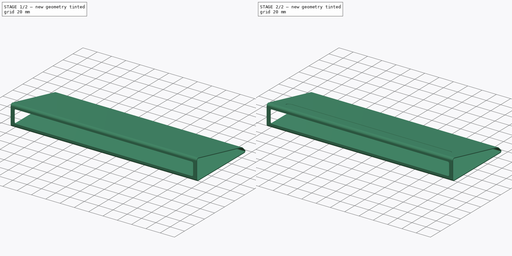
[diagram: build sequence overview — one tinted view per stage of 2, left to right]
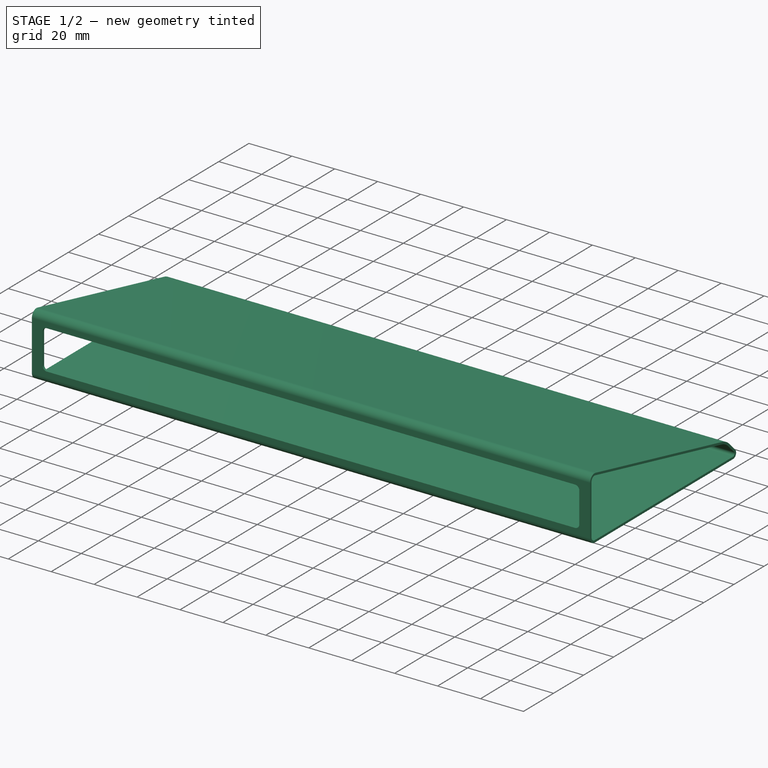
[diagram: stage 1 of 2 — iso view after this stage's code; geometry added in this stage tinted green]
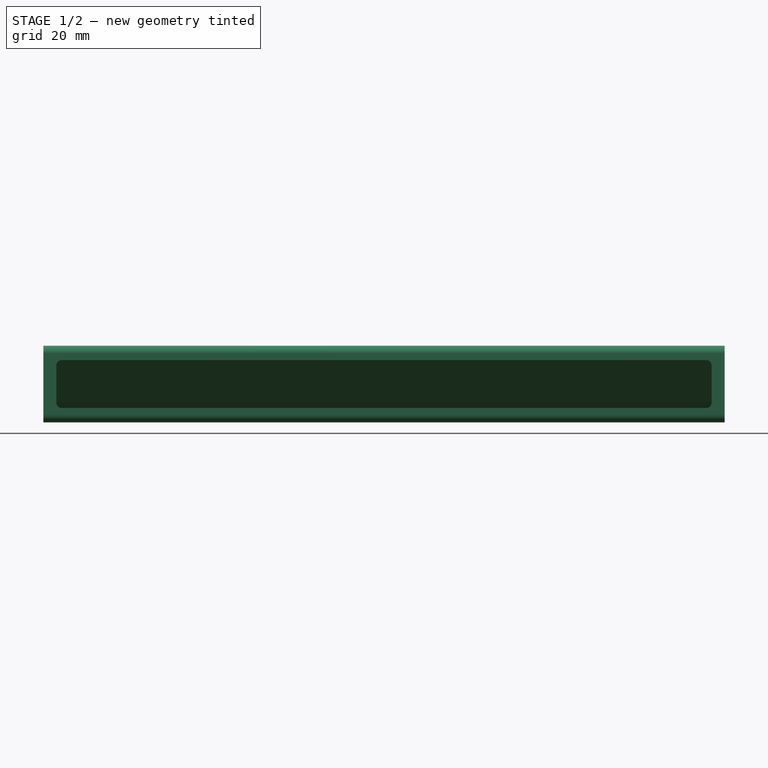
[diagram: stage 1 of 2 — front view after this stage's code; geometry added in this stage tinted green]
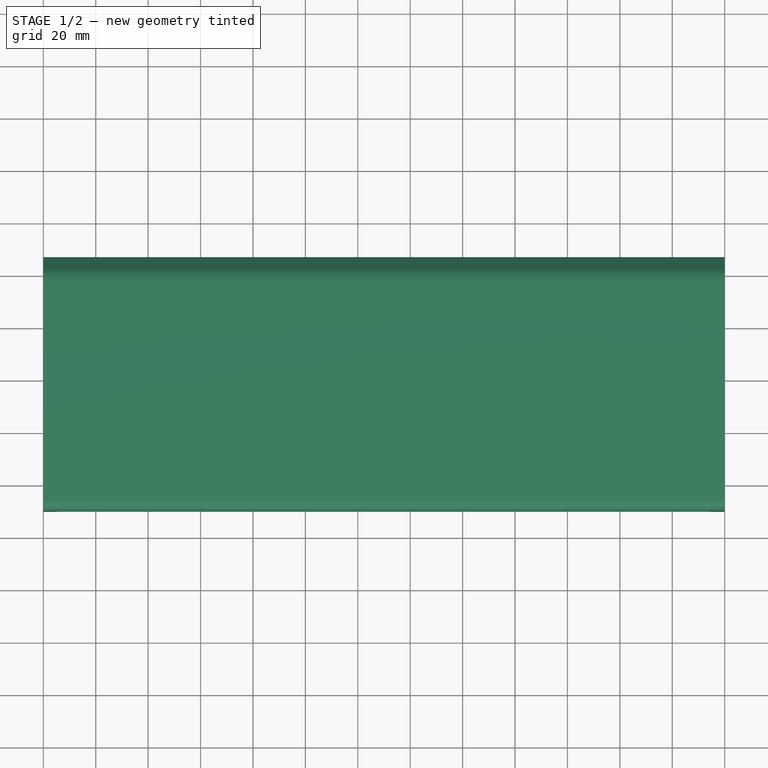
[diagram: stage 1 of 2 — top view after this stage's code; geometry added in this stage tinted green]
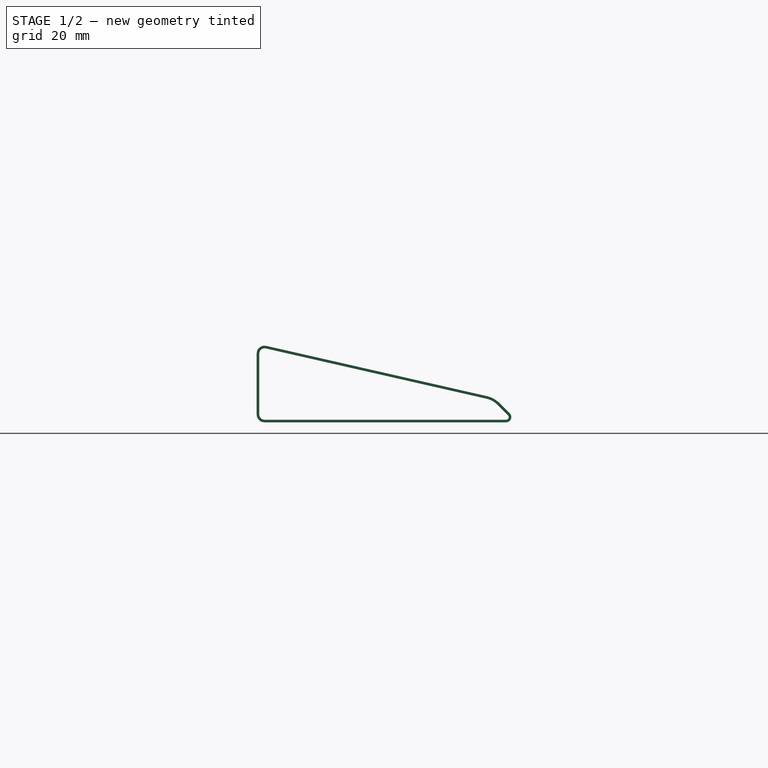
[diagram: stage 1 of 2 — right view after this stage's code; geometry added in this stage tinted green]
FCSTD DOCUMENT  (FreeCAD 0.19R24366 (Git))
Label: Laptop_base
License: All rights reserved
LicenseURL: http://en.wikipedia.org/wiki/All_rights_reserved
objects: Sketcher::SketchObject×4, PartDesign::Pocket×3, PartDesign::Pad×1, PartDesign::Body×1
note: 13 computed .brp shape members not serialized (recipe doc carries the construction recipe); baked Part::Feature solids carry a one-line shape summary decoded from their .brp

FEATURE [Sketcher::SketchObject] Sketch
  FullyConstrained = true
  MapMode = 5
  Placement = pos=(0,0,0) rot=(0.57735,0.57735,0.57735;2.0944rad)
  Support = -> [YZ_Plane]
  sketch-geometry (19):
    g0: LineSegment StartX=-47 StartY=0 StartZ=0 EndX=45.1716 EndY=0 EndZ=0
    g1: LineSegment StartX=46.5858 StartY=3.41421 StartZ=0 EndX=42.6793 EndY=7.32067 EndZ=0
    g2: LineSegment StartX=37.8286 StartY=10 StartZ=0 EndX=-46.3339 EndY=29.1652 EndZ=0
    g3: LineSegment StartX=-50 StartY=3 StartZ=0 EndX=-50 EndY=26.2401 EndZ=0
    g4: ArcOfCircle CenterX=-47 CenterY=3 CenterZ=0 NormalX=0 NormalY=0 NormalZ=1 AngleXU=0 Radius=3 StartAngle=3.14159 EndAngle=4.71239
    g5: GeomPoint X=-50 Y=0 Z=0
    g6: ArcOfCircle CenterX=45.1716 CenterY=2 CenterZ=0 NormalX=0 NormalY=0 NormalZ=1 AngleXU=0 Radius=2 StartAngle=4.71239 EndAngle=7.06858
    g7: GeomPoint X=50 Y=0 Z=0
    g8: ArcOfCircle CenterX=35.6083 CenterY=0.249607 CenterZ=0 NormalX=0 NormalY=0 NormalZ=1 AngleXU=0 Radius=10 StartAngle=0.785398 EndAngle=1.3469
    g9: ArcOfCircle CenterX=-47 CenterY=26.2401 CenterZ=0 NormalX=0 NormalY=0 NormalZ=1 AngleXU=0 Radius=3 StartAngle=1.3469 EndAngle=3.14159
    g10: GeomPoint X=-50 Y=30 Z=0
    g11: LineSegment StartX=-49 StartY=3 StartZ=0 EndX=-49 EndY=26.2401 EndZ=0
    g12: LineSegment StartX=-46.5559 StartY=28.1901 StartZ=0 EndX=37.6065 EndY=9.02496 EndZ=0
    g13: LineSegment StartX=41.9722 StartY=6.61357 StartZ=0 EndX=45.8787 EndY=2.70711 EndZ=0
    g14: LineSegment StartX=45.1716 StartY=1 StartZ=0 EndX=-47 EndY=1 EndZ=0
    g15: ArcOfCircle CenterX=35.6083 CenterY=0.249607 CenterZ=0 NormalX=0 NormalY=0 NormalZ=1 AngleXU=0 Radius=9 StartAngle=0.785398 EndAngle=1.3469
    g16: ArcOfCircle CenterX=45.1716 CenterY=2 CenterZ=0 NormalX=0 NormalY=0 NormalZ=1 AngleXU=0 Radius=1 StartAngle=4.71239 EndAngle=7.06858
    g17: ArcOfCircle CenterX=-47 CenterY=3 CenterZ=0 NormalX=0 NormalY=0 NormalZ=1 AngleXU=0 Radius=2 StartAngle=3.14159 EndAngle=4.71239
    g18: ArcOfCircle CenterX=-47 CenterY=26.2401 CenterZ=0 NormalX=0 NormalY=0 NormalZ=1 AngleXU=0 Radius=2 StartAngle=1.3469 EndAngle=3.14159
  constraints (41):
    c: Vertical(g3)
    c: PointOnObject(g5,g-1)
    c: Symmetric(g5,g7,g-2)
    c: DistanceX(g5,g7) = 100  'depth'
    c: DistanceY(g5,g10) = 30  'height'
    c: PointOnObject(g5,g0)
    c: PointOnObject(g5,g3)
    c: Tangent(g0,g4) = -1.5708
    c: Tangent(g3,g4) = 1.5708
    c: PointOnObject(g7,g0)
    c: PointOnObject(g7,g1)
    c: Tangent(g0,g6) = -1.5708
    c: Tangent(g1,g6) = -1.5708
    c: Tangent(g1,g8) = -1.5708
    c: Tangent(g2,g8) = -1.5708
    c: PointOnObject(g10,g3)
    c: PointOnObject(g10,g2)
    c: Tangent(g3,g9) = 1.5708
    c: Tangent(g2,g9) = -1.5708
    c: Distance(g2,g0) = 10
    c: Radius(g6) = 2
    c: Radius(g4) = 3
    c: Radius(g9) = 3
    c: Angle(g1,g0) = 0.785398
    c: Radius(g8) = 10  'fillet-slopeDown'
    c: Vertical(g11)
    c: Horizontal(g14)
    c: Parallel(g12,g2)
    c: Tangent(g12,g15) = 1.5708
    c: Tangent(g13,g15) = 1.5708
    c: Tangent(g13,g16) = 1.5708
    c: Tangent(g14,g16) = 1.5708
    c: Tangent(g14,g17) = 1.5708
    c: Tangent(g11,g17) = 1.5708
    c: Tangent(g11,g18) = 1.5708
    c: Tangent(g12,g18) = 1.5708
    c: Radius(g16) = 1
    c: Coincident(g17,g4)
    c: Coincident(g18,g9)
    c: Coincident(g15,g8)
    c: Coincident(g16,g6)
FEATURE [PartDesign::Pad] Pad
  Direction = (1,1,1)
  Length = 260
  Length2 = 100
  Placement = pos=(0,0,0) rot=(0.57735,0.57735,0.57735;2.0944rad)
  Profile = -> Sketch
  Refine = true
  Type = 0
FEATURE [Sketcher::SketchObject] Sketch001
  ExternalGeometry = -> [Sketch]
  FullyConstrained = true
  MapMode = 5
  Placement = pos=(-2.2e-14,-50,1.1e-14) rot=(-0.57735,-0.57735,0.57735;4.18879rad)
  Support = -> [Pad]
  sketch-geometry (14):
    g0: LineSegment StartX=-3 StartY=1.08e-14 StartZ=0 EndX=-3 EndY=100 EndZ=0
    g1: LineSegment StartX=-26.2401 StartY=9.5e-15 StartZ=0 EndX=-26.2401 EndY=100 EndZ=0
    g2: LineSegment StartX=-21.7401 StartY=5 StartZ=0 EndX=-7.5 EndY=5 EndZ=0
    g3: LineSegment StartX=-5.5 StartY=7 StartZ=0 EndX=-5.5 EndY=253 EndZ=0
    g4: LineSegment StartX=-7.5 StartY=255 StartZ=0 EndX=-21.7401 EndY=255 EndZ=0
    g5: LineSegment StartX=-23.7401 StartY=253 StartZ=0 EndX=-23.7401 EndY=7 EndZ=0
    g6: ArcOfCircle CenterX=-7.5 CenterY=7 CenterZ=0 NormalX=0 NormalY=0 NormalZ=1 AngleXU=0 Radius=2 StartAngle=4.71239 EndAngle=6.28319
    g7: GeomPoint X=-5.5 Y=5 Z=0
    g8: ArcOfCircle CenterX=-21.7401 CenterY=7 CenterZ=0 NormalX=0 NormalY=0 NormalZ=1 AngleXU=0 Radius=2 StartAngle=3.14159 EndAngle=4.71239
    g9: GeomPoint X=-23.7401 Y=5 Z=0
    g10: ArcOfCircle CenterX=-21.7401 CenterY=253 CenterZ=0 NormalX=0 NormalY=0 NormalZ=1 AngleXU=0 Radius=2 StartAngle=1.5708 EndAngle=3.14159
    g11: GeomPoint X=-23.7401 Y=255 Z=0
    g12: ArcOfCircle CenterX=-7.5 CenterY=253 CenterZ=0 NormalX=0 NormalY=0 NormalZ=1 AngleXU=0 Radius=2 StartAngle=-1.8e-15 EndAngle=1.5708
    g13: GeomPoint X=-5.5 Y=255 Z=0
  constraints (34):
    c: Coincident(g0,g-3)
    c: Vertical(g0)
    c: Coincident(g1,g-3)
    c: Vertical(g1)
    c: Horizontal(g2)
    c: Horizontal(g4)
    c: Vertical(g3)
    c: Vertical(g5)
    c: Distance(g13,g7) = 250
    c: Distance(g9,g1) = 2.5
    c: Distance(g7,g0) = 2.5
    c: Distance(g7,g-3) = 5
    c: Distance(g1) = 100
    c: Equal(g0,g1)
    c: PointOnObject(g7,g3)
    c: PointOnObject(g7,g2)
    c: Tangent(g3,g6) = -1.5708
    c: Tangent(g2,g6) = -1.5708
    c: PointOnObject(g9,g2)
    c: PointOnObject(g9,g5)
    c: Tangent(g2,g8) = -1.5708
    c: Tangent(g5,g8) = -1.5708
    c: PointOnObject(g11,g5)
    c: PointOnObject(g11,g4)
    c: Tangent(g5,g10) = -1.5708
    c: Tangent(g4,g10) = -1.5708
    c: PointOnObject(g13,g4)
    c: PointOnObject(g13,g3)
    c: Tangent(g4,g12) = -1.5708
    c: Tangent(g3,g12) = -1.5708
    c: Radius(g12) = 2
    c: Equal(g12,g10)
    c: Equal(g10,g6)
    c: Equal(g6,g8)
FEATURE [PartDesign::Pocket] Pocket
  BaseFeature = -> Pad
  Length = 5
  Length2 = 100
  Placement = pos=(0,0,0) rot=(0.57735,0.57735,0.57735;2.0944rad)
  Profile = -> Sketch001
  Refine = true
  Type = 0
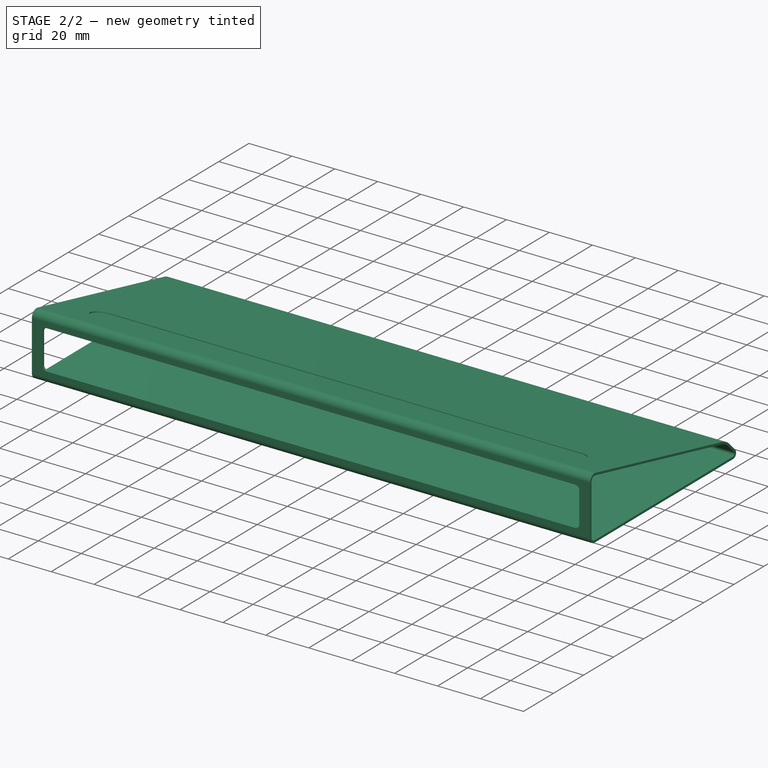
[diagram: stage 2 of 2 — iso view after this stage's code; geometry added in this stage tinted green]
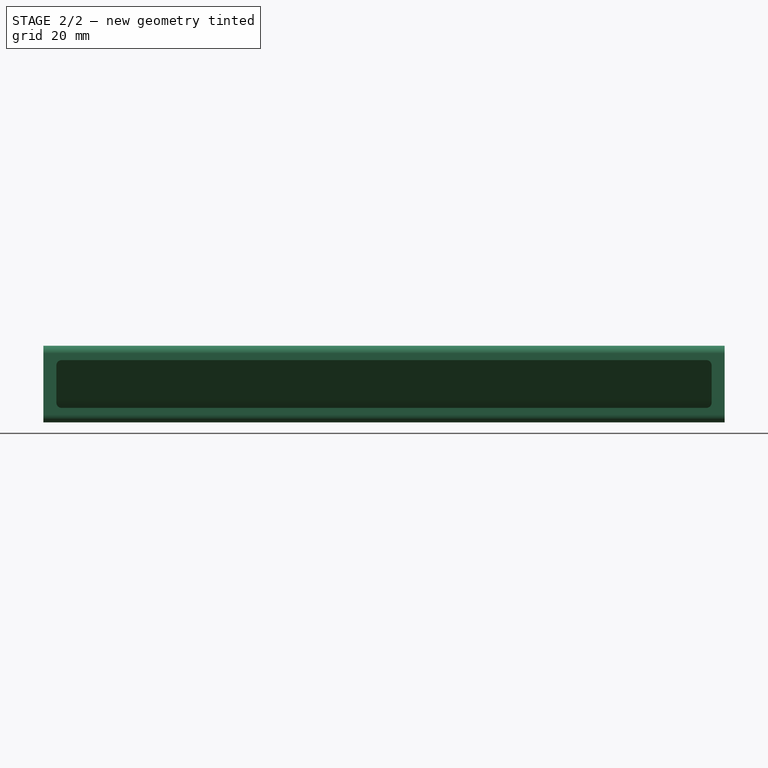
[diagram: stage 2 of 2 — front view after this stage's code; geometry added in this stage tinted green]
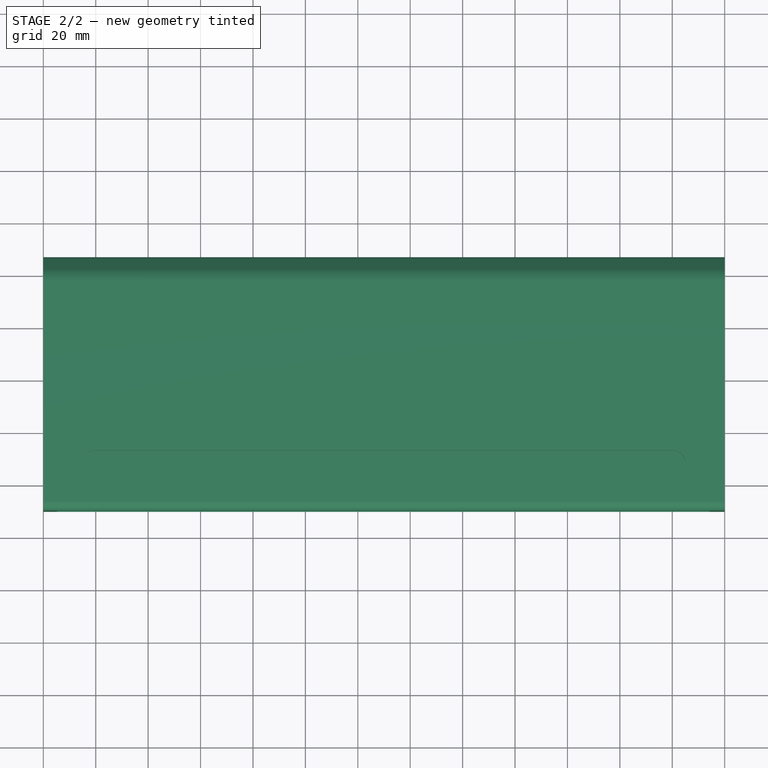
[diagram: stage 2 of 2 — top view after this stage's code; geometry added in this stage tinted green]
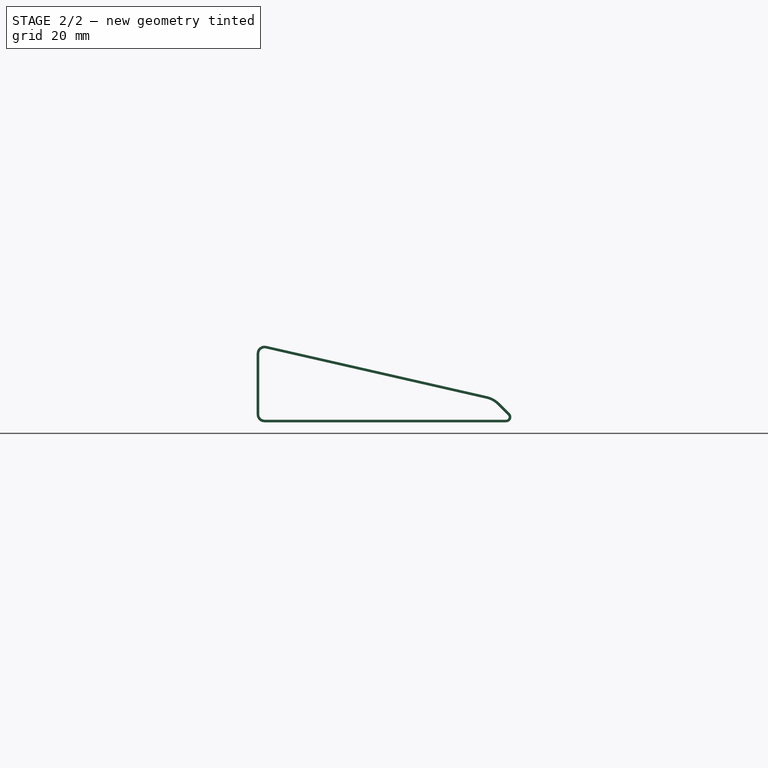
[diagram: stage 2 of 2 — right view after this stage's code; geometry added in this stage tinted green]
FEATURE [Sketcher::SketchObject] Sketch002
  ExternalGeometry = -> [Pocket]
  FullyConstrained = true
  MapMode = 5
  Placement = pos=(0,0,2e-16) rot=(0.707107,0.707107,0;3.14159rad)
  Support = -> [Pocket]
  sketch-geometry (12):
    g0: ArcOfCircle CenterX=-30 CenterY=20 CenterZ=0 NormalX=0 NormalY=0 NormalZ=1 AngleXU=0 Radius=5 StartAngle=1.5708 EndAngle=4.71239
    g1: ArcOfCircle CenterX=30 CenterY=20 CenterZ=0 NormalX=0 NormalY=0 NormalZ=1 AngleXU=0 Radius=5 StartAngle=4.71239 EndAngle=7.85398
    g2: LineSegment StartX=-30 StartY=15 StartZ=0 EndX=30 EndY=15 EndZ=0
    g3: LineSegment StartX=-30 StartY=25 StartZ=0 EndX=30 EndY=25 EndZ=0
    g4: LineSegment StartX=0 StartY=0 StartZ=0 EndX=0 EndY=50 EndZ=0
    g5: LineSegment StartX=-47 StartY=130 StartZ=0 EndX=45.1716 EndY=130 EndZ=0
    g6: ArcOfCircle CenterX=-30 CenterY=240 CenterZ=0 NormalX=0 NormalY=0 NormalZ=1 AngleXU=0 Radius=5 StartAngle=1.5708 EndAngle=4.71239
    g7: ArcOfCircle CenterX=30 CenterY=240 CenterZ=0 NormalX=0 NormalY=0 NormalZ=1 AngleXU=0 Radius=5 StartAngle=4.71239 EndAngle=7.85398
    g8: LineSegment StartX=-30 StartY=245 StartZ=0 EndX=30 EndY=245 EndZ=0
    g9: LineSegment StartX=-30 StartY=235 StartZ=0 EndX=30 EndY=235 EndZ=0
    g10: LineSegment StartX=0 StartY=260 StartZ=0 EndX=0 EndY=210 EndZ=0
    g11: LineSegment StartX=-47 StartY=260 StartZ=0 EndX=45.1716 EndY=260 EndZ=0
  constraints (30):
    c: Tangent(g0,g3) = 1.5708
    c: Tangent(g0,g2) = -1.5708
    c: Tangent(g2,g1) = -1.5708
    c: Tangent(g3,g1) = 1.5708
    c: Horizontal(g2)
    c: Equal(g0,g1)
    c: Distance(g-1,g2) = 15
    c: Radius(g1) = 5  'anti-slip-radius'
    c: DistanceX(g3,g3) = 60  'ant-slip-length'
    c: Coincident(g4,g-1)
    c: Symmetric(g0,g1,g4)
    c: DistanceY(g4,g4) = 50  'construction line'
    c: PointOnObject(g5,g-4)
    c: PointOnObject(g5,g-3)
    c: Symmetric(g-4,g-4,g5)
    c: Tangent(g6,g9) = -1.5708
    c: Tangent(g6,g8) = 1.5708
    c: Tangent(g8,g7) = 1.5708
    c: Tangent(g9,g7) = -1.5708
    c: Equal(g6,g7)
    c: Radius(g7) = 5  'anti-slip-radius'
    c: Horizontal(g9)
    c: DistanceX(g9,g9) = 60
    c: PointOnObject(g10,g-2)
    c: DistanceY(g10,g10) = 50
    c: Coincident(g11,g-4)
    c: Coincident(g11,g-3)
    c: PointOnObject(g10,g11)
    c: Symmetric(g6,g7,g10)
    c: Distance(g10,g8) = 15
FEATURE [PartDesign::Pocket] Pocket001
  BaseFeature = -> Pocket
  Length = 0.5
  Length2 = 100
  Placement = pos=(0,0,0) rot=(0.57735,0.57735,0.57735;2.0944rad)
  Profile = -> Sketch002
  Refine = true
  Type = 0
FEATURE [Sketcher::SketchObject] Sketch003
  ExternalGeometry = -> [Sketch]
  FullyConstrained = true
  MapMode = 5
  Placement = pos=(-3.1e-15,4.02979,17.6965) rot=(-0.111025,-0.111025,-0.987597;1.58328rad)
  Support = -> [Pocket001]
  sketch-geometry (4):
    g0: ArcOfCircle CenterX=36.653 CenterY=20 CenterZ=0 NormalX=0 NormalY=0 NormalZ=1 AngleXU=0 Radius=5 StartAngle=3.14159 EndAngle=6.28319
    g1: ArcOfCircle CenterX=36.653 CenterY=240 CenterZ=0 NormalX=0 NormalY=0 NormalZ=1 AngleXU=0 Radius=5 StartAngle=1.7e-15 EndAngle=3.14159
    g2: LineSegment StartX=41.653 StartY=20 StartZ=0 EndX=41.653 EndY=240 EndZ=0
    g3: LineSegment StartX=31.653 StartY=20 StartZ=0 EndX=31.653 EndY=240 EndZ=0
  constraints (10):
    c: Tangent(g0,g3) = 1.5708
    c: Tangent(g0,g2) = -1.5708
    c: Tangent(g2,g1) = -1.5708
    c: Tangent(g3,g1) = 1.5708
    c: Vertical(g2)
    c: Equal(g0,g1)
    c: Distance(g2) = 220  'rubber-length'
    c: Radius(g0) = 5
    c: DistanceX(g0,g-3) = 15  'rubber-Vert'
    c: DistanceY(g-3,g0) = 20  'rubber-horiz'
FEATURE [PartDesign::Pocket] Pocket002
  BaseFeature = -> Pocket001
  Length = 0.5
  Length2 = 100
  Placement = pos=(0,0,0) rot=(0.57735,0.57735,0.57735;2.0944rad)
  Profile = -> Sketch003
  Refine = true
  Type = 0
FEATURE [PartDesign::Body] Body
  Group = -> [Sketch,Pad,Sketch001,Pocket,Sketch002,Pocket001,Sketch003,Pocket002]
  Origin = -> Origin
  Tip = -> Pocket002
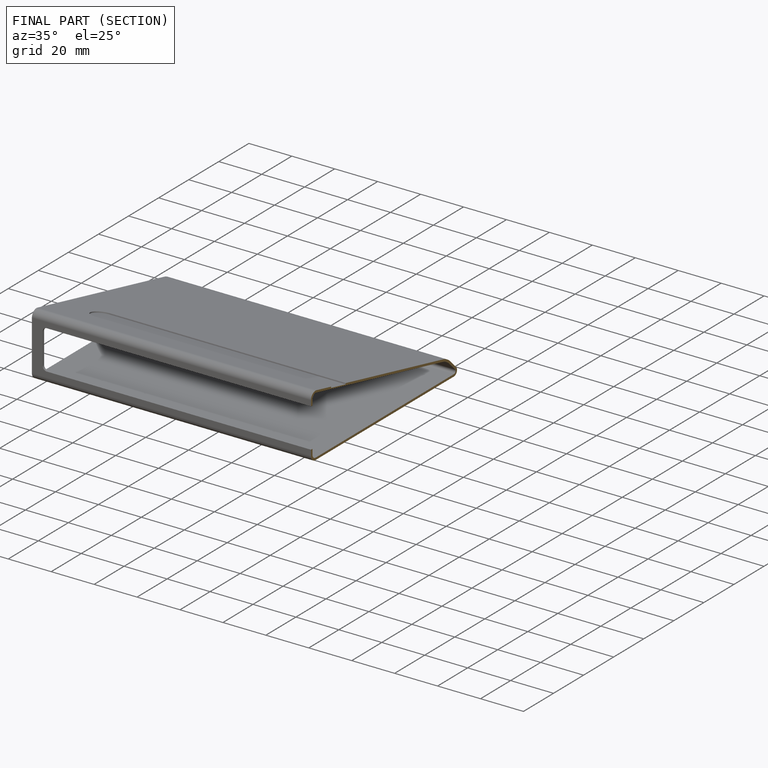
[diagram: finished part — half-section view (interior)]
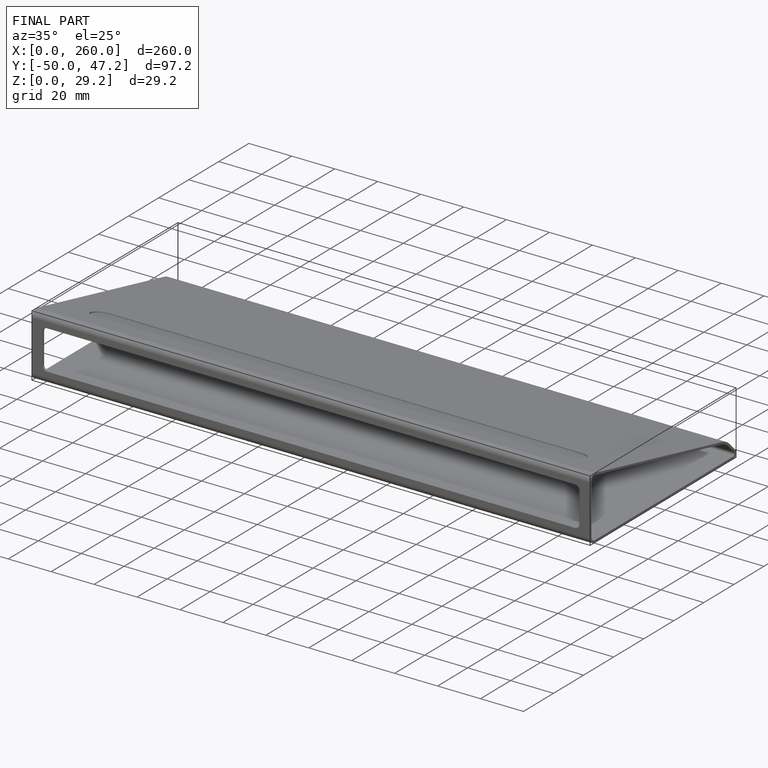
[diagram: finished part — iso view with bounding-box wireframe]
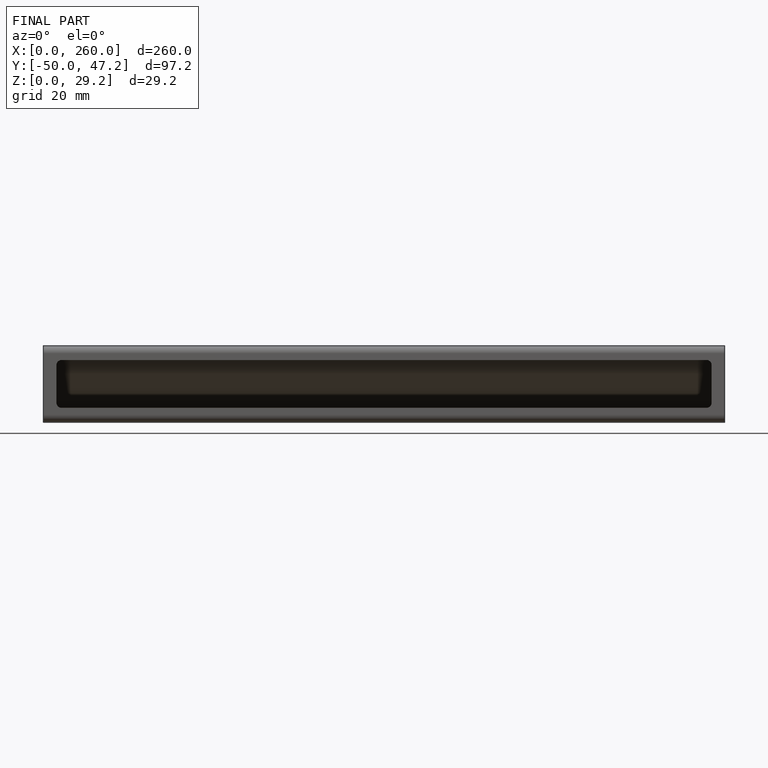
[diagram: finished part — front view with bounding-box wireframe]
